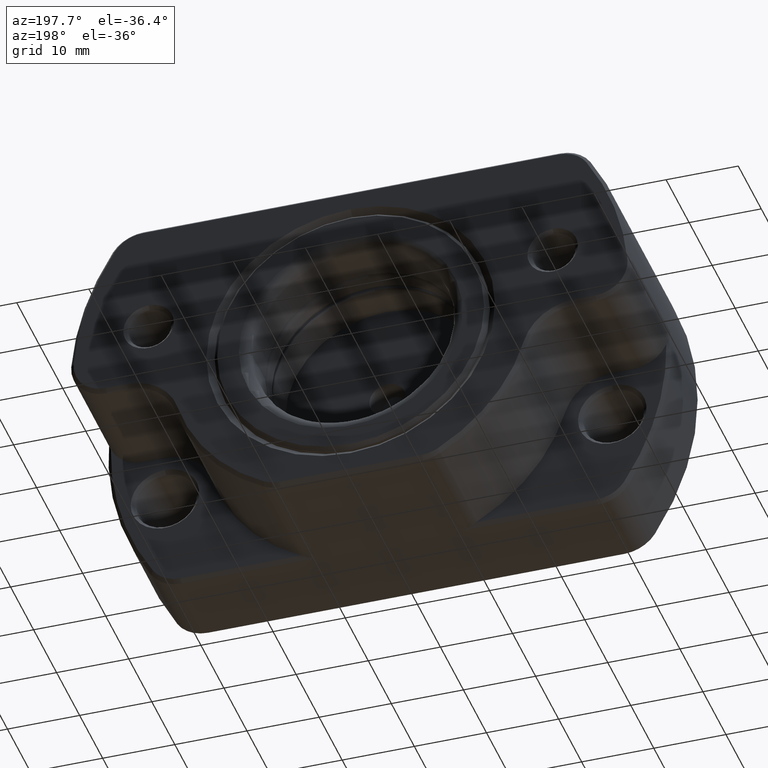
[diagram: clean part render]
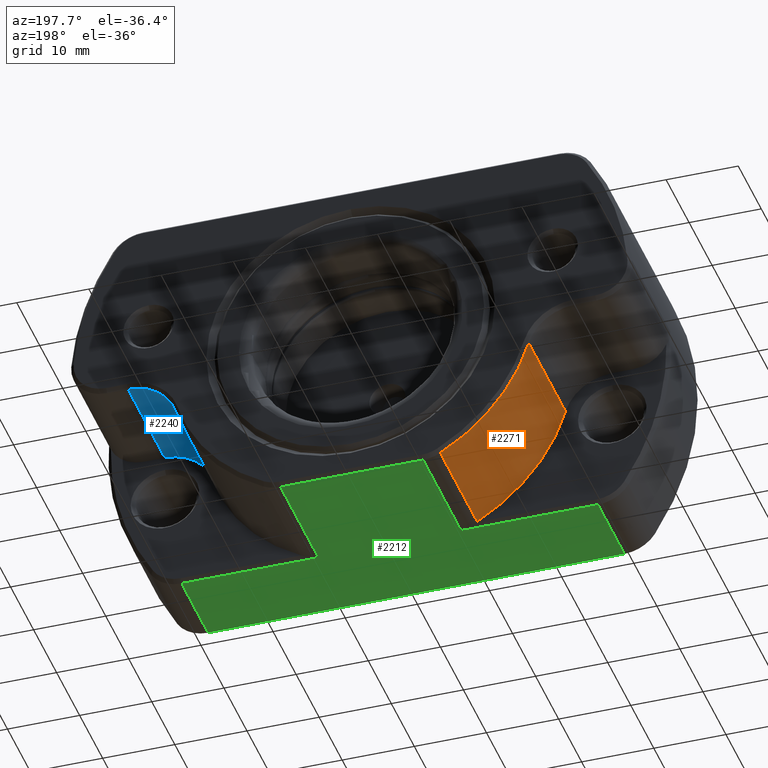
[diagram: same view with three faces highlighted in distinct colors, each labeled with its STEP entity id]
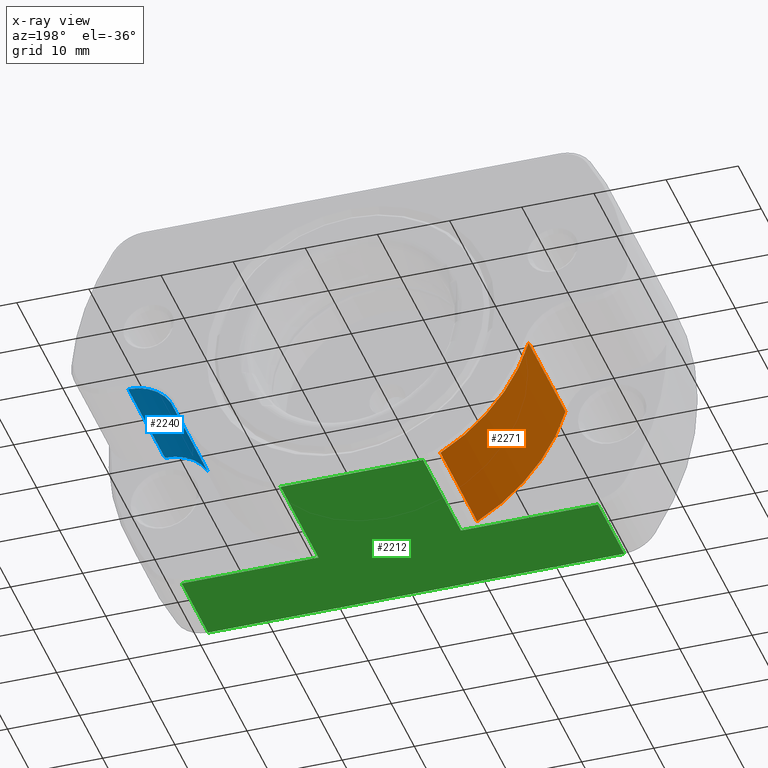
[diagram: x-ray of the same camera — body ghosted, the three highlighted faces saturated]
A machine part, auxiliary view with three faces highlighted in distinct colors.
The next image is the same camera in x-ray (body ghosted, the three faces saturated) — at least one of them is partly hidden behind the body in this view.
Their STEP definitions:

[orange] entity #2271 — the highlighted cylindrical surface (partial cylindrical patch) has radius 25.53 mm, axis along (0, 1, 0).
#84=CYLINDRICAL_SURFACE('',#2585,25.53002478314);
#233=FACE_OUTER_BOUND('',#374,.T.);
#374=EDGE_LOOP('',(#1822,#1823,#1824,#1825));
#529=CIRCLE('',#2558,25.53002478314);
#536=CIRCLE('',#2572,25.53002478314);
#724=LINE('',#3941,#851);
#734=LINE('',#3970,#861);
#851=VECTOR('',#3133,16.00000000069);
#861=VECTOR('',#3175,15.99999999905);
#1016=VERTEX_POINT('',#3920);
#1017=VERTEX_POINT('',#3922);
#1022=VERTEX_POINT('',#3940);
#1023=VERTEX_POINT('',#3946);
#1295=EDGE_CURVE('',#1016,#1017,#529,.T.);
#1304=EDGE_CURVE('',#1017,#1022,#724,.T.);
#1307=EDGE_CURVE('',#1022,#1023,#536,.T.);
#1319=EDGE_CURVE('',#1016,#1023,#734,.T.);
#1822=ORIENTED_EDGE('',*,*,#1307,.F.);
#1823=ORIENTED_EDGE('',*,*,#1304,.F.);
#1824=ORIENTED_EDGE('',*,*,#1295,.F.);
#1825=ORIENTED_EDGE('',*,*,#1319,.T.);
#2271=ADVANCED_FACE('',(#233),#84,.T.);
#2558=AXIS2_PLACEMENT_3D('',#3923,#3109,#3110);
#2572=AXIS2_PLACEMENT_3D('',#3947,#3141,#3142);
#2585=AXIS2_PLACEMENT_3D('',#3971,#3176,#3177);
#3109=DIRECTION('center_axis',(0.,-1.,0.));
#3110=DIRECTION('ref_axis',(-0.96034622675361,0.,-0.278810194864003));
#3133=DIRECTION('',(1.077522515611E-9,1.,-5.418951953595E-10));
#3141=DIRECTION('center_axis',(0.,1.,0.));
#3142=DIRECTION('ref_axis',(-0.4809196897128,0.,-0.8767646503176));
#3175=DIRECTION('',(-8.684719610644E-11,1.,8.689693409795E-11));
#3176=DIRECTION('center_axis',(0.,1.,0.));
#3177=DIRECTION('ref_axis',(1.,0.,0.));
#3920=CARTESIAN_POINT('',(-24.51766296941,12.5,-7.118031184668));
#3922=CARTESIAN_POINT('',(-12.27789159707,12.5,-22.38382325159));
#3923=CARTESIAN_POINT('Origin',(0.,12.5,0.));
#3940=CARTESIAN_POINT('',(-12.2778915805916,28.5000000000383,-22.3838232603955));
#3941=CARTESIAN_POINT('',(-12.27789159707,12.5,-22.38382325159));
#3946=CARTESIAN_POINT('',(-24.51766296988,28.5000000000005,-7.11803118390734));
#3947=CARTESIAN_POINT('Origin',(0.,28.5,0.));
#3970=CARTESIAN_POINT('',(-24.51766296941,12.5,-7.118031184668));
#3971=CARTESIAN_POINT('Origin',(0.,29.,0.));

[blue] entity #2240 — the highlighted cylindrical surface (partial cylindrical patch) has radius 6.75 mm, axis along (0, -1, 0).
#75=CYLINDRICAL_SURFACE('',#2531,6.75);
#202=FACE_OUTER_BOUND('',#342,.T.);
#342=EDGE_LOOP('',(#1682,#1683,#1684,#1685));
#513=CIRCLE('',#2520,6.75);
#518=CIRCLE('',#2532,6.75);
#709=LINE('',#3862,#836);
#710=LINE('',#3867,#837);
#836=VECTOR('',#3040,15.99999999905);
#837=VECTOR('',#3047,15.99999999926);
#1001=VERTEX_POINT('',#3842);
#1002=VERTEX_POINT('',#3844);
#1005=VERTEX_POINT('',#3861);
#1006=VERTEX_POINT('',#3865);
#1260=EDGE_CURVE('',#1002,#1001,#513,.T.);
#1269=EDGE_CURVE('',#1005,#1001,#709,.T.);
#1271=EDGE_CURVE('',#1006,#1005,#518,.T.);
#1272=EDGE_CURVE('',#1002,#1006,#710,.T.);
#1682=ORIENTED_EDGE('',*,*,#1269,.F.);
#1683=ORIENTED_EDGE('',*,*,#1271,.F.);
#1684=ORIENTED_EDGE('',*,*,#1272,.F.);
#1685=ORIENTED_EDGE('',*,*,#1260,.T.);
#2240=ADVANCED_FACE('',(#202),#75,.F.);
#2520=AXIS2_PLACEMENT_3D('',#3845,#3016,#3017);
#2531=AXIS2_PLACEMENT_3D('',#3864,#3043,#3044);
#2532=AXIS2_PLACEMENT_3D('',#3866,#3045,#3046);
#3016=DIRECTION('center_axis',(0.,-1.,0.));
#3017=DIRECTION('ref_axis',(0.,0.,1.));
#3040=DIRECTION('',(-8.684741815105E-11,-1.,-8.689704512025E-11));
#3043=DIRECTION('center_axis',(0.,-1.,0.));
#3044=DIRECTION('ref_axis',(-1.,0.,0.));
#3045=DIRECTION('center_axis',(0.,-1.,0.));
#3046=DIRECTION('ref_axis',(0.,0.,1.));
#3047=DIRECTION('',(2.48396370151E-9,1.,-4.651645735482E-11));
#3842=CARTESIAN_POINT('',(24.51766296941,12.5,-7.118031184668));
#3844=CARTESIAN_POINT('',(31.,12.5,-2.25));
#3845=CARTESIAN_POINT('Origin',(31.,12.5,-9.));
#3861=CARTESIAN_POINT('',(24.5176629703479,28.4999999995259,-7.11803118314648));
#3862=CARTESIAN_POINT('',(24.5176629708,28.49999999905,-7.118031183278));
#3864=CARTESIAN_POINT('Origin',(31.,-4.495,-9.));
#3865=CARTESIAN_POINT('',(31.0000000397426,28.4999999994433,-2.25000000055708));
#3866=CARTESIAN_POINT('Origin',(31.,28.5,-9.));
#3867=CARTESIAN_POINT('',(31.,12.5,-2.25));

[green] entity #2212 — the highlighted planar face has unit normal (0, 0, 1).
#174=FACE_OUTER_BOUND('',#306,.T.);
#306=EDGE_LOOP('',(#1522,#1523,#1524,#1525,#1526,#1527,#1528,#1529));
#665=LINE('',#3654,#792);
#667=LINE('',#3659,#794);
#668=LINE('',#3661,#795);
#669=LINE('',#3663,#796);
#670=LINE('',#3664,#797);
#671=LINE('',#3666,#798);
#672=LINE('',#3668,#799);
#673=LINE('',#3669,#800);
#792=VECTOR('',#2830,57.68882019226);
#794=VECTOR('',#2834,19.74658626878);
#795=VECTOR('',#2835,16.5000000004);
#796=VECTOR('',#2836,18.97111694763);
#797=VECTOR('',#2837,11.50000001233);
#798=VECTOR('',#2838,11.5000000185);
#799=VECTOR('',#2839,18.97111684003);
#800=VECTOR('',#2840,16.5000000004);
#931=VERTEX_POINT('',#3649);
#932=VERTEX_POINT('',#3653);
#933=VERTEX_POINT('',#3657);
#934=VERTEX_POINT('',#3658);
#935=VERTEX_POINT('',#3660);
#936=VERTEX_POINT('',#3662);
#937=VERTEX_POINT('',#3665);
#938=VERTEX_POINT('',#3667);
#1169=EDGE_CURVE('',#931,#932,#665,.T.);
#1171=EDGE_CURVE('',#933,#934,#667,.T.);
#1172=EDGE_CURVE('',#933,#935,#668,.T.);
#1173=EDGE_CURVE('',#936,#935,#669,.T.);
#1174=EDGE_CURVE('',#932,#936,#670,.T.);
#1175=EDGE_CURVE('',#937,#931,#671,.T.);
#1176=EDGE_CURVE('',#938,#937,#672,.T.);
#1177=EDGE_CURVE('',#938,#934,#673,.T.);
#1522=ORIENTED_EDGE('',*,*,#1171,.F.);
#1523=ORIENTED_EDGE('',*,*,#1172,.T.);
#1524=ORIENTED_EDGE('',*,*,#1173,.F.);
#1525=ORIENTED_EDGE('',*,*,#1174,.F.);
#1526=ORIENTED_EDGE('',*,*,#1169,.F.);
#1527=ORIENTED_EDGE('',*,*,#1175,.F.);
#1528=ORIENTED_EDGE('',*,*,#1176,.F.);
#1529=ORIENTED_EDGE('',*,*,#1177,.T.);
#2170=PLANE('',#2447);
#2212=ADVANCED_FACE('',(#174),#2170,.F.);
#2447=AXIS2_PLACEMENT_3D('',#3656,#2832,#2833);
#2830=DIRECTION('',(1.,0.,0.));
#2832=DIRECTION('center_axis',(0.,0.,1.));
#2833=DIRECTION('ref_axis',(1.,0.,0.));
#2834=DIRECTION('',(-1.,0.,0.));
#2835=DIRECTION('',(8.551591757748E-10,-1.,-2.407921673443E-11));
#2836=DIRECTION('',(-1.,-3.249812210103E-10,-3.249811273755E-10));
#2837=DIRECTION('',(0.,1.,0.));
#2838=DIRECTION('',(-9.355776119441E-9,-1.,-5.361082004483E-10));
#2839=DIRECTION('',(-1.,6.499610411846E-10,6.499607602802E-10));
#2840=DIRECTION('',(8.551597140647E-10,1.,2.407900141845E-11));
#3649=CARTESIAN_POINT('',(-28.8444100961296,0.499999996146438,-22.9999999959526));
#3653=CARTESIAN_POINT('',(28.8444100961292,0.499999996146433,-22.9999999959512));
#3654=CARTESIAN_POINT('',(-28.84441009613,0.4999999938348,-22.99999999383));
#3656=CARTESIAN_POINT('Origin',(-40.,29.,-23.));
#3657=CARTESIAN_POINT('',(9.873293134392,28.5000000004,-22.9999999996));
#3658=CARTESIAN_POINT('',(-9.873293134392,28.5000000004,-22.9999999996));
#3659=CARTESIAN_POINT('',(9.873293134392,28.5000000004,-22.9999999996));
#3660=CARTESIAN_POINT('',(9.873293148502,12.,-23.));
#3661=CARTESIAN_POINT('',(9.873293134392,28.5000000004,-22.9999999996));
#3662=CARTESIAN_POINT('',(28.8444100961292,12.0000000038563,-22.9999999959509));
#3663=CARTESIAN_POINT('',(28.84441009613,12.00000000617,-22.99999999383));
#3664=CARTESIAN_POINT('',(28.84441009613,0.4999999938348,-22.99999999383));
#3665=CARTESIAN_POINT('',(-28.84440998854,12.0000000092475,-22.9999999961469));
#3666=CARTESIAN_POINT('',(-28.84440998854,12.00000001233,-22.99999998767));
#3667=CARTESIAN_POINT('',(-9.873293148502,12.,-23.));
#3668=CARTESIAN_POINT('',(-9.873293148502,12.,-23.));
#3669=CARTESIAN_POINT('',(-9.873293148502,12.,-23.));